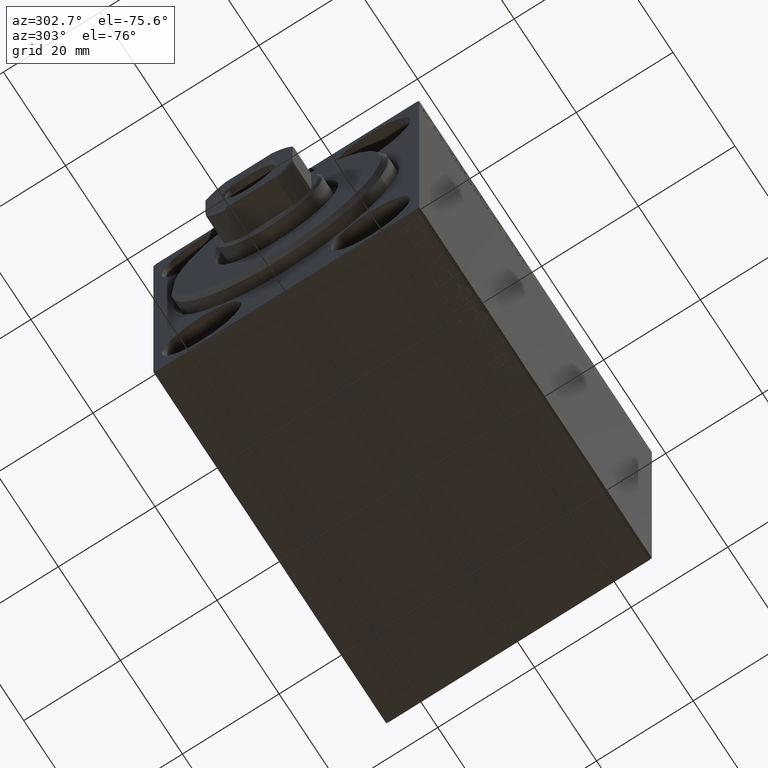
[diagram: clean part render]
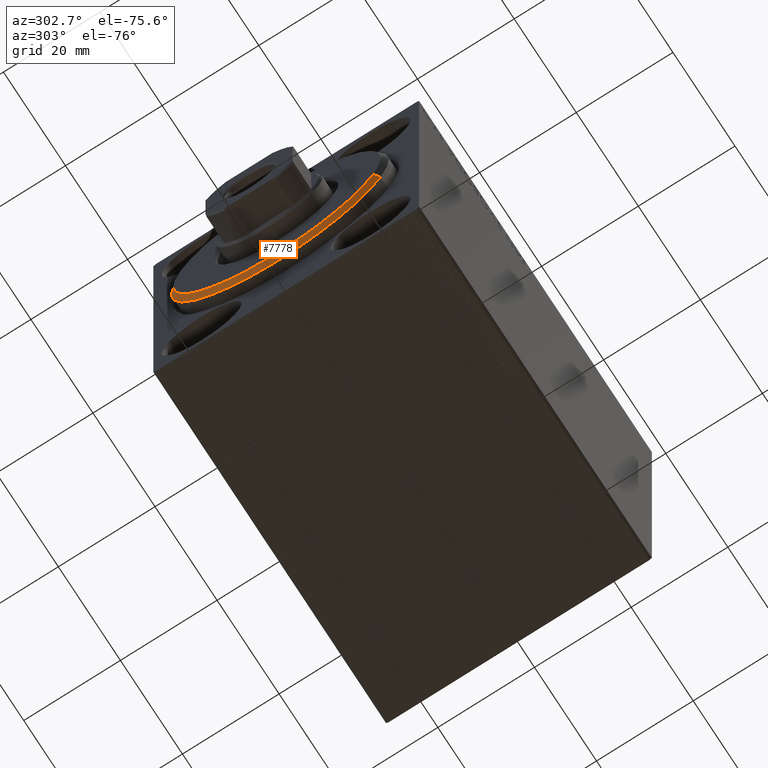
[diagram: same view with one face highlighted and labeled with its STEP entity id]
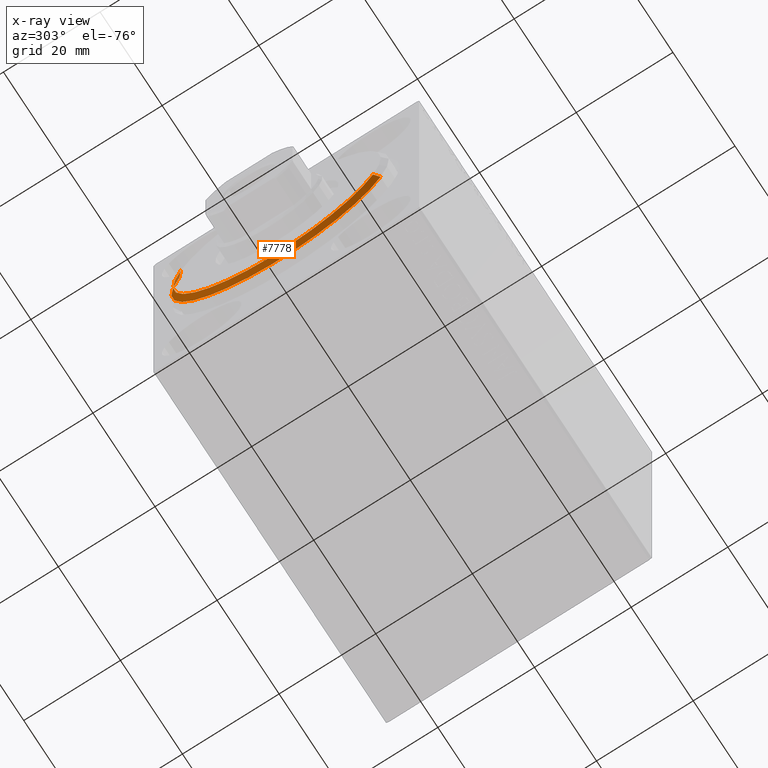
[diagram: x-ray of the same camera — body ghosted, the highlighted face saturated]
A machine part, auxiliary view. The second image highlights one B-rep face of the part: STEP entity #7778.
The next image is the same camera in x-ray: the body ghosted, the highlighted face saturated — about 0% of this face is hidden behind the body in this view.
In plain terms, the highlighted conical surface has half-angle 45 deg.
Its self-contained STEP definition (entity closure, byte-faithful):
#3165 = AXIS2_PLACEMENT_3D ( 'NONE', #6566, #32850, #39518 ) ;
#5873 = CONICAL_SURFACE ( 'NONE', #7996, 21.50000000000000355, 0.7853981633974466137 ) ;
#6471 = AXIS2_PLACEMENT_3D ( 'NONE', #15913, #22165, #32420 ) ;
#6566 = CARTESIAN_POINT ( 'NONE',  ( 1.999999999999999112, 0.000000000000000000, 0.000000000000000000 ) ) ;
#7402 = VERTEX_POINT ( 'NONE', #31424 ) ;
#7551 = EDGE_LOOP ( 'NONE', ( #42863, #20503, #36723, #10648 ) ) ;
#7778 = ADVANCED_FACE ( 'NONE', ( #28405 ), #5873, .T. ) ;
#7996 = AXIS2_PLACEMENT_3D ( 'NONE', #28182, #18609, #8181 ) ;
#8181 = DIRECTION ( 'NONE',  ( 0.000000000000000000, 0.000000000000000000, 1.000000000000000000 ) ) ;
#8524 = VECTOR ( 'NONE', #26733, 1000.000000000000000 ) ;
#9211 = VECTOR ( 'NONE', #20695, 1000.000000000000000 ) ;
#9589 = VERTEX_POINT ( 'NONE', #32595 ) ;
#10648 = ORIENTED_EDGE ( 'NONE', *, *, #24625, .F. ) ;
#10698 = CARTESIAN_POINT ( 'NONE',  ( 3.000000000000000000, 0.000000000000000000, 21.50000000000000355 ) ) ;
#12513 = LINE ( 'NONE', #19623, #8524 ) ;
#13067 = VERTEX_POINT ( 'NONE', #25982 ) ;
#15913 = CARTESIAN_POINT ( 'NONE',  ( 3.000000000000000000, 0.000000000000000000, 0.000000000000000000 ) ) ;
#18609 = DIRECTION ( 'NONE',  ( -1.000000000000000000, 0.000000000000000000, 0.000000000000000000 ) ) ;
#19623 = CARTESIAN_POINT ( 'NONE',  ( 3.000000000000000000, 2.632990618166810024E-15, -21.50000000000000355 ) ) ;
#20503 = ORIENTED_EDGE ( 'NONE', *, *, #25364, .T. ) ;
#20695 = DIRECTION ( 'NONE',  ( -0.7071067811865487940, 0.000000000000000000, 0.7071067811865463515 ) ) ;
#22165 = DIRECTION ( 'NONE',  ( 1.000000000000000000, -0.000000000000000000, 0.000000000000000000 ) ) ;
#24625 = EDGE_CURVE ( 'NONE', #40921, #13067, #41172, .T. ) ;
#25364 = EDGE_CURVE ( 'NONE', #9589, #7402, #12513, .T. ) ;
#25982 = CARTESIAN_POINT ( 'NONE',  ( 1.999999999999999112, 0.000000000000000000, 22.50000000000000355 ) ) ;
#26733 = DIRECTION ( 'NONE',  ( -0.7071067811865487940, 8.659560562354919300E-17, -0.7071067811865463515 ) ) ;
#28182 = CARTESIAN_POINT ( 'NONE',  ( 3.000000000000000000, 0.000000000000000000, 0.000000000000000000 ) ) ;
#28405 = FACE_OUTER_BOUND ( 'NONE', #7551, .T. ) ;
#28957 = EDGE_CURVE ( 'NONE', #9589, #40921, #34211, .T. ) ;
#29461 = CIRCLE ( 'NONE', #3165, 22.50000000000000355 ) ;
#31424 = CARTESIAN_POINT ( 'NONE',  ( 1.999999999999999112, 2.755455298081545172E-15, -22.50000000000000355 ) ) ;
#32420 = DIRECTION ( 'NONE',  ( 0.000000000000000000, 0.000000000000000000, -1.000000000000000000 ) ) ;
#32595 = CARTESIAN_POINT ( 'NONE',  ( 3.000000000000000000, 2.694222958124177598E-15, -21.50000000000000355 ) ) ;
#32850 = DIRECTION ( 'NONE',  ( -1.000000000000000000, 0.000000000000000000, 0.000000000000000000 ) ) ;
#34211 = CIRCLE ( 'NONE', #6471, 21.50000000000000355 ) ;
#36723 = ORIENTED_EDGE ( 'NONE', *, *, #43692, .F. ) ;
#39518 = DIRECTION ( 'NONE',  ( 0.000000000000000000, 0.000000000000000000, -1.000000000000000000 ) ) ;
#40921 = VERTEX_POINT ( 'NONE', #41547 ) ;
#41172 = LINE ( 'NONE', #10698, #9211 ) ;
#41547 = CARTESIAN_POINT ( 'NONE',  ( 3.000000000000000000, 0.000000000000000000, 21.50000000000000355 ) ) ;
#42863 = ORIENTED_EDGE ( 'NONE', *, *, #28957, .F. ) ;
#43692 = EDGE_CURVE ( 'NONE', #13067, #7402, #29461, .T. ) ;